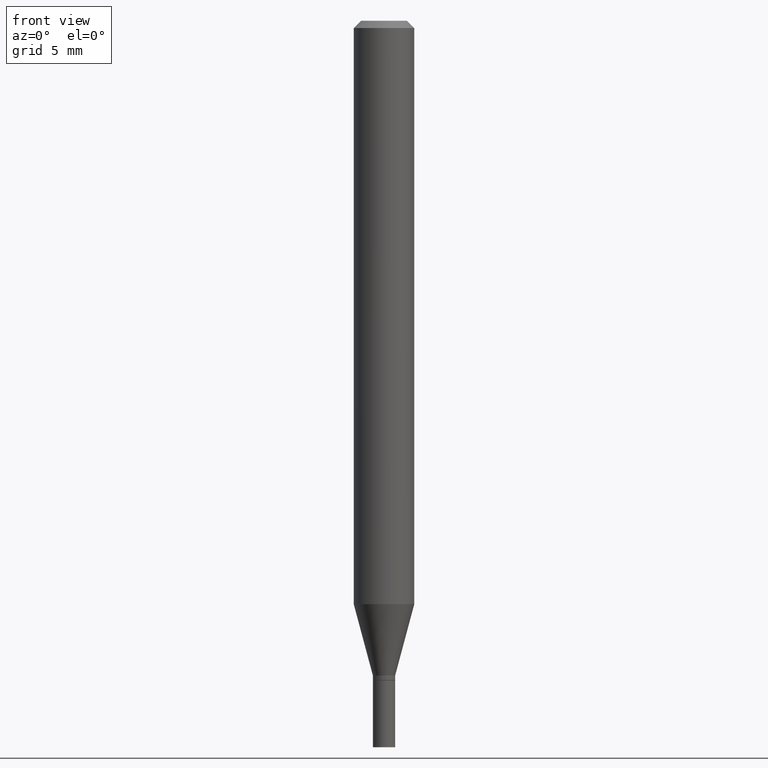
[diagram: clean part render]
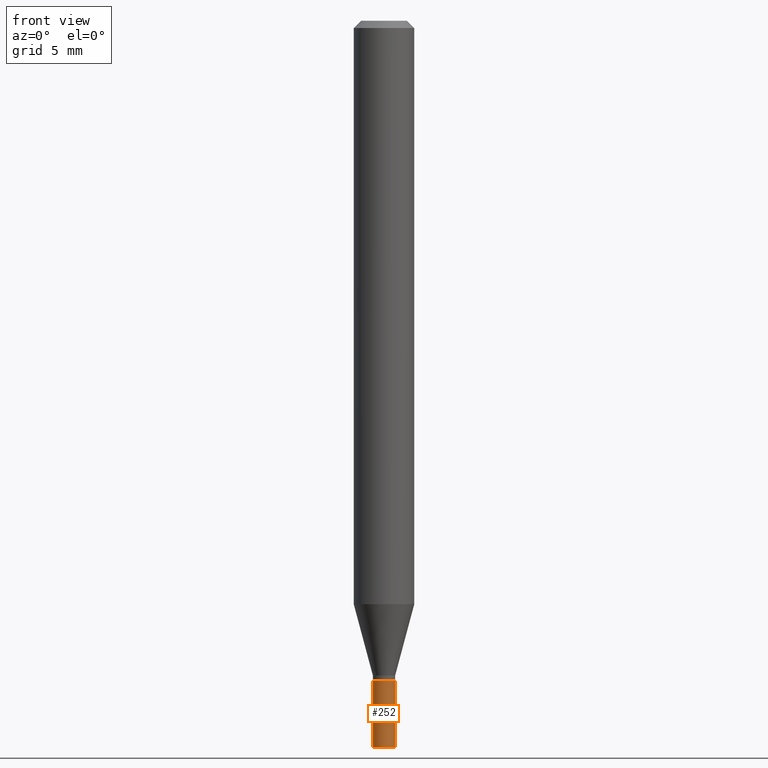
[diagram: same view with one face highlighted and labeled with its STEP entity id]
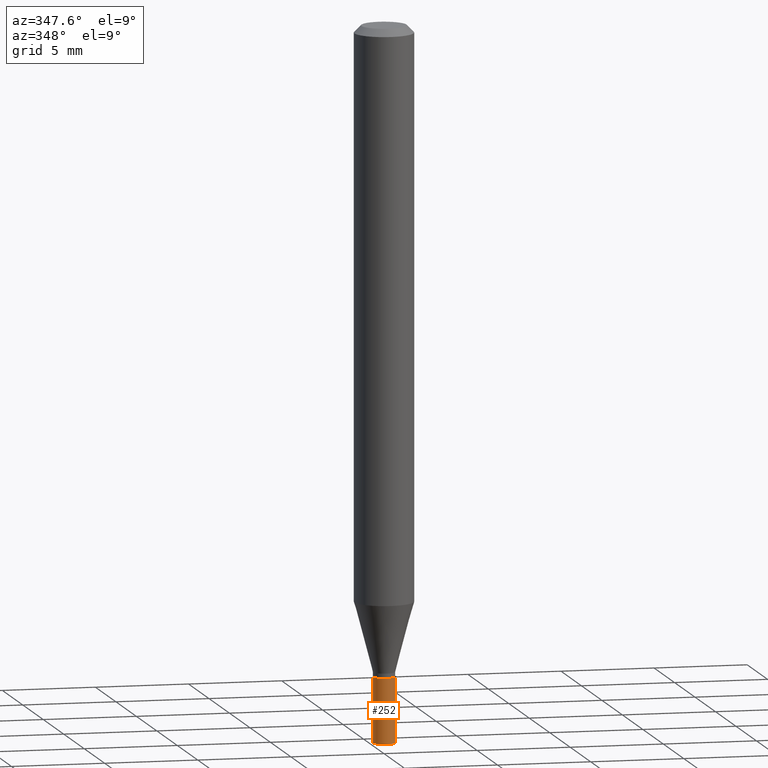
[diagram: same view with one face highlighted and labeled with its STEP entity id]
A machine part, front view. The second image highlights one B-rep face of the part: STEP entity #252.
A second angle (auxiliary view) of the same face is appended — the face is thin or edge-on in the first view.
In plain terms, the highlighted cylindrical surface (edge-blend (fillet) strip) has radius 0.5842 mm, axis along (-0, 0, 1).
Its self-contained STEP definition (entity closure, byte-faithful):
#28 = DIRECTION ( 'NONE',  ( -2.445468806185136597E-29, 3.491481338843145583E-15, 1.000000000000000000 ) ) ;
#32 = DIRECTION ( 'NONE',  ( 1.000000000000000000, -6.982962677686267499E-15, 4.876176775795935793E-29 ) ) ;
#40 = CARTESIAN_POINT ( 'NONE',  ( 0.02299999999999999961, -1.606081415867841462E-16, 1.121520658433065211E-30 ) ) ;
#52 = AXIS2_PLACEMENT_3D ( 'NONE', #404, #54, #291 ) ;
#54 = DIRECTION ( 'NONE',  ( -2.445468806185136597E-29, 3.491481338843145583E-15, 1.000000000000000000 ) ) ;
#62 = CARTESIAN_POINT ( 'NONE',  ( -0.02299999999999999961, -4.832884966659718819E-15, -1.362000000000000099 ) ) ;
#77 = LINE ( 'NONE', #40, #415 ) ;
#80 = VERTEX_POINT ( 'NONE', #419 ) ;
#82 = EDGE_LOOP ( 'NONE', ( #433, #187, #296, #245 ) ) ;
#119 = CIRCLE ( 'NONE', #346, 0.02299999999999999961 ) ;
#129 = EDGE_CURVE ( 'NONE', #80, #236, #77, .T. ) ;
#161 = CARTESIAN_POINT ( 'NONE',  ( 0.02299999999999999961, -4.916005725091148109E-15, -1.362000000000000099 ) ) ;
#173 = CYLINDRICAL_SURFACE ( 'NONE', #256, 0.02299999999999999961 ) ;
#187 = ORIENTED_EDGE ( 'NONE', *, *, #275, .T. ) ;
#197 = VERTEX_POINT ( 'NONE', #62 ) ;
#212 = FACE_OUTER_BOUND ( 'NONE', #82, .T. ) ;
#234 = CARTESIAN_POINT ( 'NONE',  ( -0.02299999999999999961, -4.832884966659718819E-15, -1.500000000000000222 ) ) ;
#236 = VERTEX_POINT ( 'NONE', #161 ) ;
#245 = ORIENTED_EDGE ( 'NONE', *, *, #323, .F. ) ;
#252 = ADVANCED_FACE ( 'NONE', ( #212 ), #173, .T. ) ;
#253 = CARTESIAN_POINT ( 'NONE',  ( 3.668203209277704895E-29, -5.237222008264718177E-15, -1.500000000000000222 ) ) ;
#256 = AXIS2_PLACEMENT_3D ( 'NONE', #259, #28, #32 ) ;
#259 = CARTESIAN_POINT ( 'NONE',  ( 0.000000000000000000, 0.000000000000000000, 0.000000000000000000 ) ) ;
#275 = EDGE_CURVE ( 'NONE', #335, #80, #119, .T. ) ;
#281 = DIRECTION ( 'NONE',  ( -2.445468806185136877E-29, 3.491481338843145188E-15, 1.000000000000000000 ) ) ;
#291 = DIRECTION ( 'NONE',  ( 1.000000000000000000, -6.982962677686247778E-15, 0.000000000000000000 ) ) ;
#296 = ORIENTED_EDGE ( 'NONE', *, *, #129, .T. ) ;
#314 = EDGE_CURVE ( 'NONE', #335, #197, #409, .T. ) ;
#318 = DIRECTION ( 'NONE',  ( -2.445468806185136597E-29, 3.491481338843145583E-15, 1.000000000000000000 ) ) ;
#323 = EDGE_CURVE ( 'NONE', #197, #236, #386, .T. ) ;
#327 = DIRECTION ( 'NONE',  ( -2.445468806185136877E-29, 3.491481338843145188E-15, 1.000000000000000000 ) ) ;
#335 = VERTEX_POINT ( 'NONE', #234 ) ;
#346 = AXIS2_PLACEMENT_3D ( 'NONE', #253, #318, #461 ) ;
#358 = VECTOR ( 'NONE', #327, 39.37007874015748143 ) ;
#386 = CIRCLE ( 'NONE', #52, 0.02299999999999999961 ) ;
#404 = CARTESIAN_POINT ( 'NONE',  ( 3.330728514024156148E-29, -4.755397583504364259E-15, -1.362000000000000099 ) ) ;
#407 = CARTESIAN_POINT ( 'NONE',  ( -0.02299999999999999961, 1.634248292248230400E-16, -1.131355070758628495E-30 ) ) ;
#409 = LINE ( 'NONE', #407, #358 ) ;
#415 = VECTOR ( 'NONE', #281, 39.37007874015748143 ) ;
#419 = CARTESIAN_POINT ( 'NONE',  ( 0.02299999999999999961, -5.397830149851502027E-15, -1.500000000000000222 ) ) ;
#433 = ORIENTED_EDGE ( 'NONE', *, *, #314, .F. ) ;
#461 = DIRECTION ( 'NONE',  ( 1.000000000000000000, -6.982962677686247778E-15, 0.000000000000000000 ) ) ;